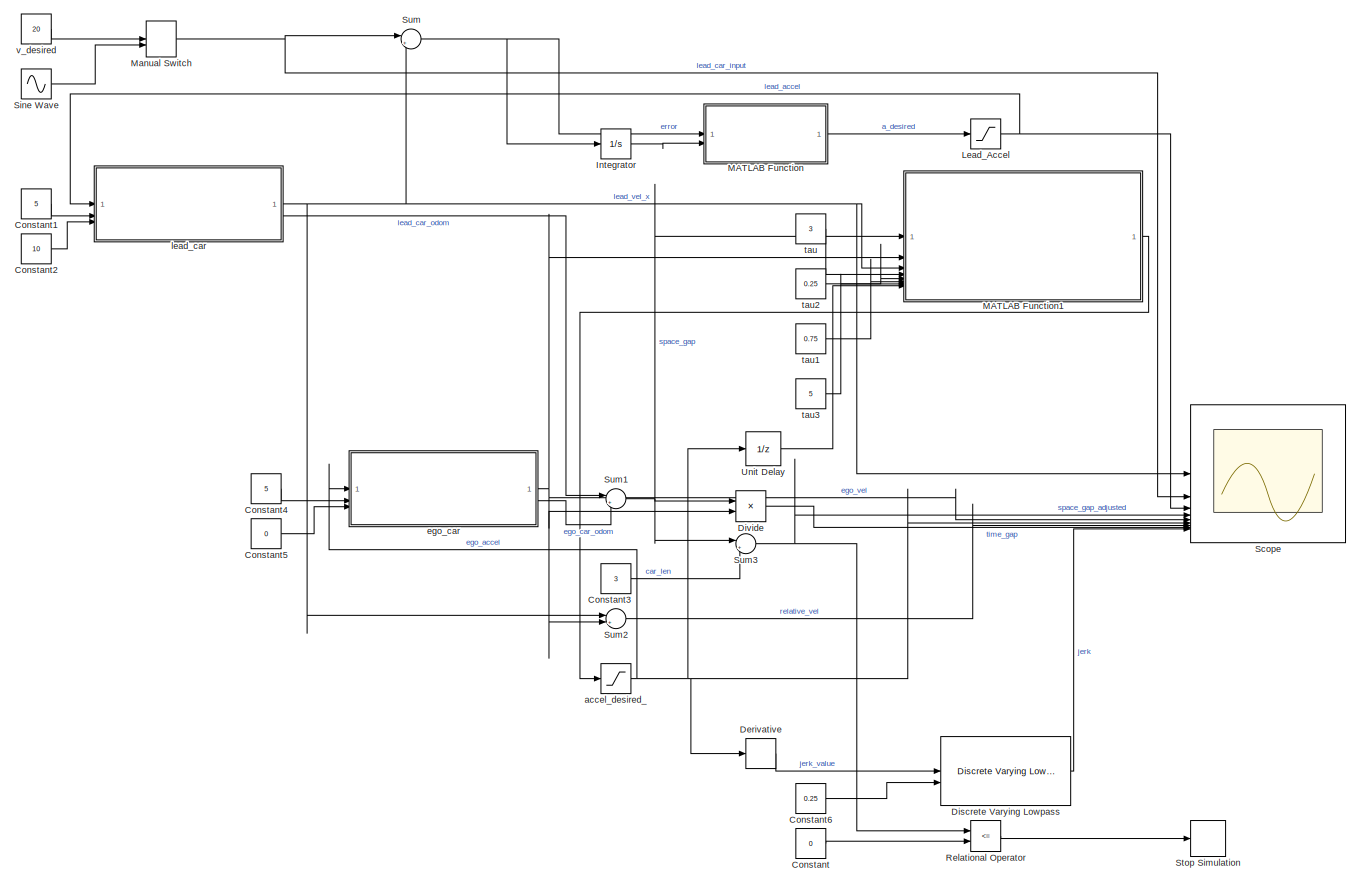
[diagram: root canvas - part 1/1, most of the canvas]
MODEL slx_b56e8d873cec
KIND model
CONFIG AbsTol = auto
CONFIG EnableMultiTasking = off
CONFIG FixedStep = auto
CONFIG MaxStep = auto
CONFIG MinStep = auto
CONFIG RelTol = 1e-3
CONFIG SampleTimeConstraint = Unconstrained
CONFIG SolverName = VariableStepAuto
CONFIG StartTime = 0.0
CONFIG StopTime = 500
BLOCK [Constant] Constant
  Value = 0
BLOCK [Constant] Constant1
  Value = 5
BLOCK [Constant] Constant2
  Value = 10
BLOCK [Constant] Constant3
  Value = 3
BLOCK [Constant] Constant4
  Value = 5
BLOCK [Constant] Constant5
  Value = 0
BLOCK [Constant] Constant6
  Value = 0.25
BLOCK [Derivative] Derivative
BLOCK [Reference] Discrete Varying Lowpass  REF=cstblocks/Linear Parameter Varying/Discrete Varying Lowpass
  SourceBlock = cstblocks/Linear Parameter Varying/Discrete Varying Lowpass
  SourceType = Discrete Varying Lowpass
BLOCK [Product] Divide
  Inputs = */
BLOCK [Integrator] Integrator
BLOCK [Saturate] Lead_Accel
  LowerLimit = -3
  UpperLimit = 1.5
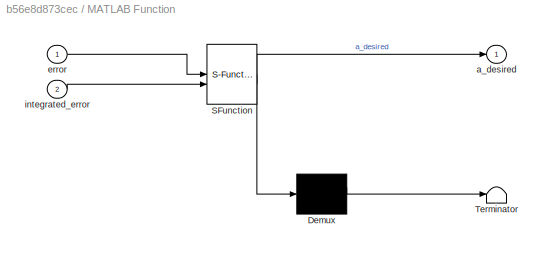
BLOCK [SubSystem] MATLAB Function
  ErrorFcn = Stateflow.Translate.translate
  LibrarySourceBlock = simulink/User-Defined\nFunctions/MATLAB Function
  PermitHierarchicalResolution = ExplicitOnly
  SFBlockType = MATLAB Function
  TreatAsAtomicUnit = on
BLOCK [Demux] MATLAB Function/ Demux 
  Outputs = 1
BLOCK [S-Function] MATLAB Function/ SFunction 
  EnableBusSupport = on
  FunctionName = sf_sfun
  PortCounts = [2 2]
  SFcnIsStateOwnerBlock = off
  SFunctionDeploymentMode = off
  Tag = Stateflow S-Function 2
BLOCK [Terminator] MATLAB Function/ Terminator 
BLOCK [Outport] MATLAB Function/a_desired
BLOCK [Inport] MATLAB Function/error
BLOCK [Inport] MATLAB Function/integrated_error
  Port = 2
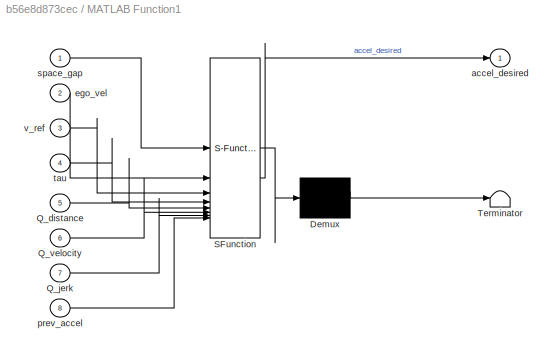
BLOCK [SubSystem] MATLAB Function1
  ErrorFcn = Stateflow.Translate.translate
  LibrarySourceBlock = simulink/User-Defined\nFunctions/MATLAB Function
  PermitHierarchicalResolution = ExplicitOnly
  SFBlockType = MATLAB Function
  TreatAsAtomicUnit = on
BLOCK [Demux] MATLAB Function1/ Demux 
  Outputs = 1
BLOCK [S-Function] MATLAB Function1/ SFunction 
  EnableBusSupport = on
  FunctionName = sf_sfun
  PortCounts = [8 2]
  SFcnIsStateOwnerBlock = off
  SFunctionDeploymentMode = off
  Tag = Stateflow S-Function 1
BLOCK [Terminator] MATLAB Function1/ Terminator 
BLOCK [Inport] MATLAB Function1/Q_distance
  Port = 5
BLOCK [Inport] MATLAB Function1/Q_jerk
  Port = 7
BLOCK [Inport] MATLAB Function1/Q_velocity
  Port = 6
BLOCK [Outport] MATLAB Function1/accel_desired
BLOCK [Inport] MATLAB Function1/ego_vel
  Port = 2
BLOCK [Inport] MATLAB Function1/prev_accel
  Port = 8
BLOCK [Inport] MATLAB Function1/space_gap
BLOCK [Inport] MATLAB Function1/tau
  Port = 4
BLOCK [Inport] MATLAB Function1/v_ref
  Port = 3
BLOCK [ManualSwitch] Manual Switch
  CurrentSetting = 0
BLOCK [RelationalOperator] Relational Operator
  InputSameDT = off
  Operator = <=
  OutDataTypeStr = boolean
  RndMeth = Simplest
BLOCK [Scope] Scope
  Floating = off
  NumInputPorts = 9
  ScopeSpecificationString = Simulink.scopes.TimeScopeBlockCfg('CurrentConfiguration', extmgr.ConfigurationSet(extmgr.Configuration('Core','General UI',true),extmgr.Configuration('Core','Source UI',true),extmgr.Configuration('Sources','WiredSimulink',true,'DataLoggingVariableName','ScopeData1'),extmgr.Configuration('Visuals','Time Domain',true,'SerializedDisplays',{struct('MinYLimReal','-0.92951','MaxYLimReal','0.70202','YLab...<+1942ch>
BLOCK [Sin] Sine Wave
  Bias = 20
  SampleTime = 0
BLOCK [Stop] Stop Simulation
BLOCK [Sum] Sum
  Inputs = |+-
BLOCK [Sum] Sum1
  Inputs = |+-
BLOCK [Sum] Sum2
  Inputs = |+-
BLOCK [Sum] Sum3
  Inputs = |+-
BLOCK [UnitDelay] Unit Delay
  HasFrameUpgradeWarning = on
  SampleTime = -1
BLOCK [Saturate] accel_desired_
  LowerLimit = -20
  UpperLimit = 20
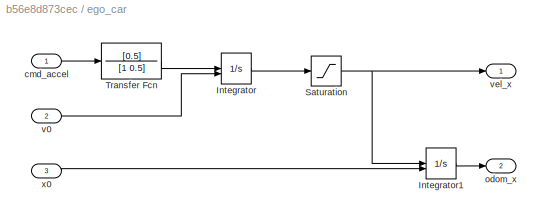
BLOCK [SubSystem] ego_car
BLOCK [Integrator] ego_car/Integrator
  InitialConditionSource = external
BLOCK [Integrator] ego_car/Integrator1
  InitialConditionSource = external
BLOCK [Saturate] ego_car/Saturation
  LowerLimit = 0
  UpperLimit = 80
BLOCK [TransferFcn] ego_car/Transfer Fcn
  Denominator = [1 0.5]
  Numerator = [0.5]
BLOCK [Inport] ego_car/cmd_accel
BLOCK [Outport] ego_car/odom_x
  Port = 2
BLOCK [Inport] ego_car/v0
  Port = 2
BLOCK [Outport] ego_car/vel_x
BLOCK [Inport] ego_car/x0
  Port = 3
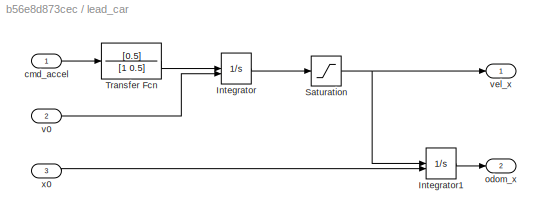
BLOCK [SubSystem] lead_car
BLOCK [Integrator] lead_car/Integrator
  InitialConditionSource = external
BLOCK [Integrator] lead_car/Integrator1
  InitialConditionSource = external
BLOCK [Saturate] lead_car/Saturation
  LowerLimit = 0
  UpperLimit = 80
BLOCK [TransferFcn] lead_car/Transfer Fcn
  Denominator = [1 0.5]
  Numerator = [0.5]
BLOCK [Inport] lead_car/cmd_accel
BLOCK [Outport] lead_car/odom_x
  Port = 2
BLOCK [Inport] lead_car/v0
  Port = 2
BLOCK [Outport] lead_car/vel_x
BLOCK [Inport] lead_car/x0
  Port = 3
BLOCK [Constant] tau
  Value = 3
BLOCK [Constant] tau1
  Value = 0.75
BLOCK [Constant] tau2
  Value = 0.25
BLOCK [Constant] tau3
  Value = 5
BLOCK [Constant] v_desired
  Value = 20
LINE Constant1:1 -> lead_car:2
LINE Constant2:1 -> lead_car:3
LINE Constant3:1 -> Sum3:2
LINE Constant4:1 -> ego_car:2
LINE Constant5:1 -> ego_car:3
LINE Constant6:1 -> Discrete Varying Lowpass:2
LINE Constant:1 -> Relational Operator:2
LINE Derivative:1 -> Discrete Varying Lowpass:1
LINE Discrete Varying Lowpass:1 -> Scope:9
LINE Divide:1 -> Scope:8
LINE Integrator:1 -> MATLAB Function:2
NET Lead_Accel:1 -> Scope:3, lead_car:1
LINE MATLAB Function1:1 -> accel_desired_:1
LINE MATLAB Function:1 -> Lead_Accel:1
NET Manual Switch:1 -> Scope:2, Sum:1
LINE Relational Operator:1 -> Stop Simulation:1
LINE Sine Wave:1 -> Manual Switch:2
NET Sum1:1 -> Divide:1, MATLAB Function1:1, Sum3:1
LINE Sum2:1 -> Scope:7
NET Sum3:1 -> Relational Operator:1, Scope:4
NET Sum:1 -> Integrator:1, MATLAB Function:1
LINE Unit Delay:1 -> MATLAB Function1:8
NET accel_desired_:1 -> Derivative:1, Scope:6, Unit Delay:1, ego_car:1
LINE ego_car/Integrator1:1 -> ego_car/odom_x:1
LINE ego_car/Integrator:1 -> ego_car/Saturation:1
NET ego_car/Saturation:1 -> ego_car/Integrator1:1, ego_car/vel_x:1
LINE ego_car/Transfer Fcn:1 -> ego_car/Integrator:1
LINE ego_car/cmd_accel:1 -> ego_car/Transfer Fcn:1
LINE ego_car/v0:1 -> ego_car/Integrator:2
LINE ego_car/x0:1 -> ego_car/Integrator1:2
NET ego_car:1 -> Divide:2, MATLAB Function1:2, Scope:5, Sum2:2
LINE ego_car:2 -> Sum1:2
LINE lead_car/Integrator1:1 -> lead_car/odom_x:1
LINE lead_car/Integrator:1 -> lead_car/Saturation:1
NET lead_car/Saturation:1 -> lead_car/Integrator1:1, lead_car/vel_x:1
LINE lead_car/Transfer Fcn:1 -> lead_car/Integrator:1
LINE lead_car/cmd_accel:1 -> lead_car/Transfer Fcn:1
LINE lead_car/v0:1 -> lead_car/Integrator:2
LINE lead_car/x0:1 -> lead_car/Integrator1:2
NET lead_car:1 -> MATLAB Function1:3, Scope:1, Sum2:1, Sum:2
LINE lead_car:2 -> Sum1:1
LINE tau1:1 -> MATLAB Function1:6
LINE tau2:1 -> MATLAB Function1:5
LINE tau3:1 -> MATLAB Function1:7
LINE tau:1 -> MATLAB Function1:4
LINE v_desired:1 -> Manual Switch:1
note: NET lines group one-source signal fan-out (src -> all destinations, sorted); 1:1 wires keep LINE
CHART MATLAB Function1 states=1 transitions=1
  STATE_LABEL 'eML_blk_kernel()'
  STATE_LABEL 'SCRIPT:\nfunction accel_desired = optimal_controller(space_gap, ego_vel, v_ref, tau, Q_distance, Q_velocity, Q_jerk, prev_accel)\n    % Inputs:\n    % space_gap: Current gap between the ego vehicle and the lead vehicle\n    % ego_vel: Current velocity of the ego vehicle\n    % v_ref: Reference velocity (desired velocity or lead vehicle velocity)\n    % tau: Time gap (constant time gap parameter)\n    % Q...<+845ch>'
CHART MATLAB Function states=1 transitions=1
  STATE_LABEL 'eML_blk_kernel()'
  STATE_LABEL 'SCRIPT:\nfunction a_desired = controller(error,integrated_error)\n\na_desired = 0.3*error + 0.01*integrated_error;\n'
CHART  states=0 transitions=0
CHART  states=0 transitions=0
